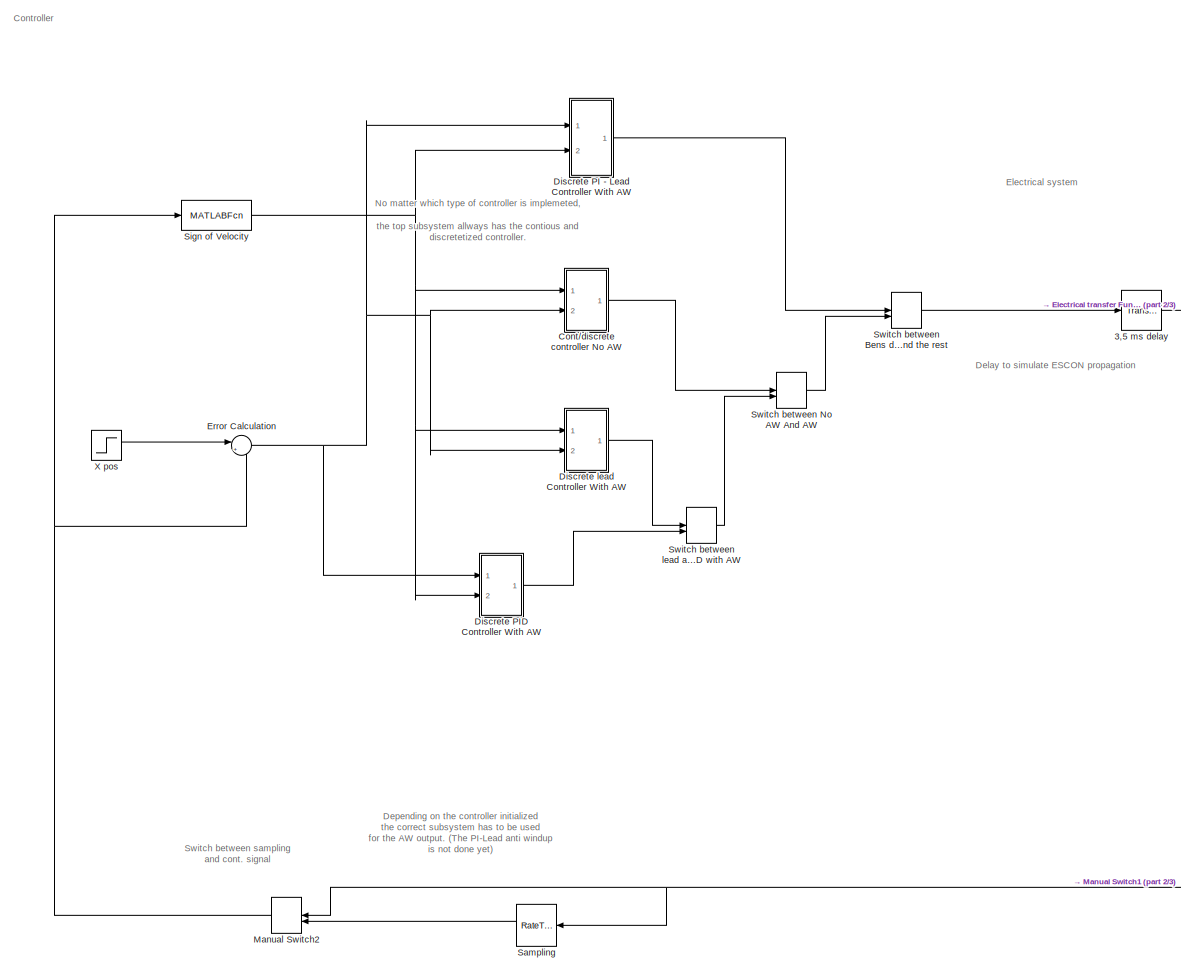
[diagram: root canvas - part 1/3, left side, full height]
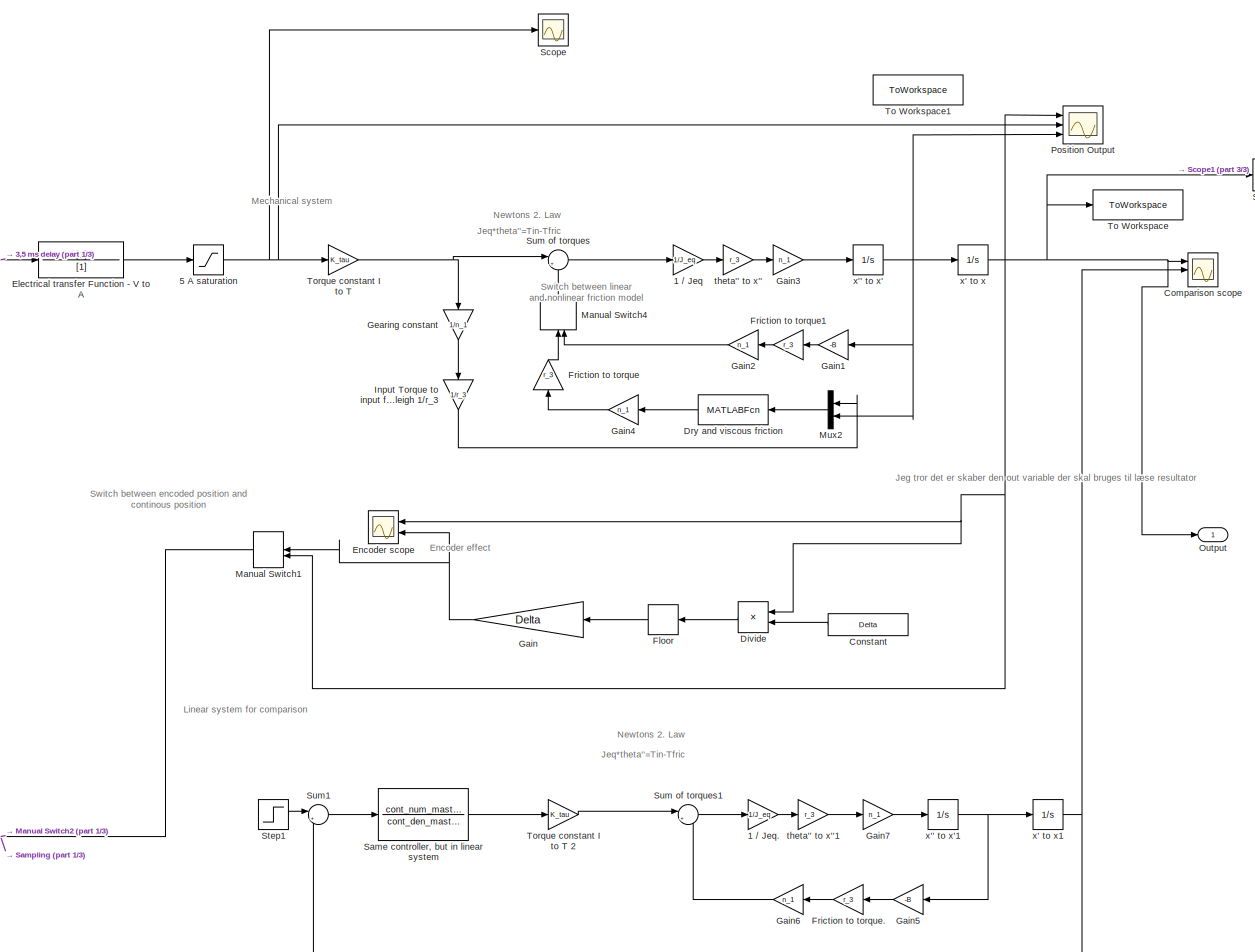
[diagram: root canvas - part 2/3, right side, full height]
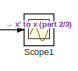
[diagram: root canvas - part 3/3, top right region]
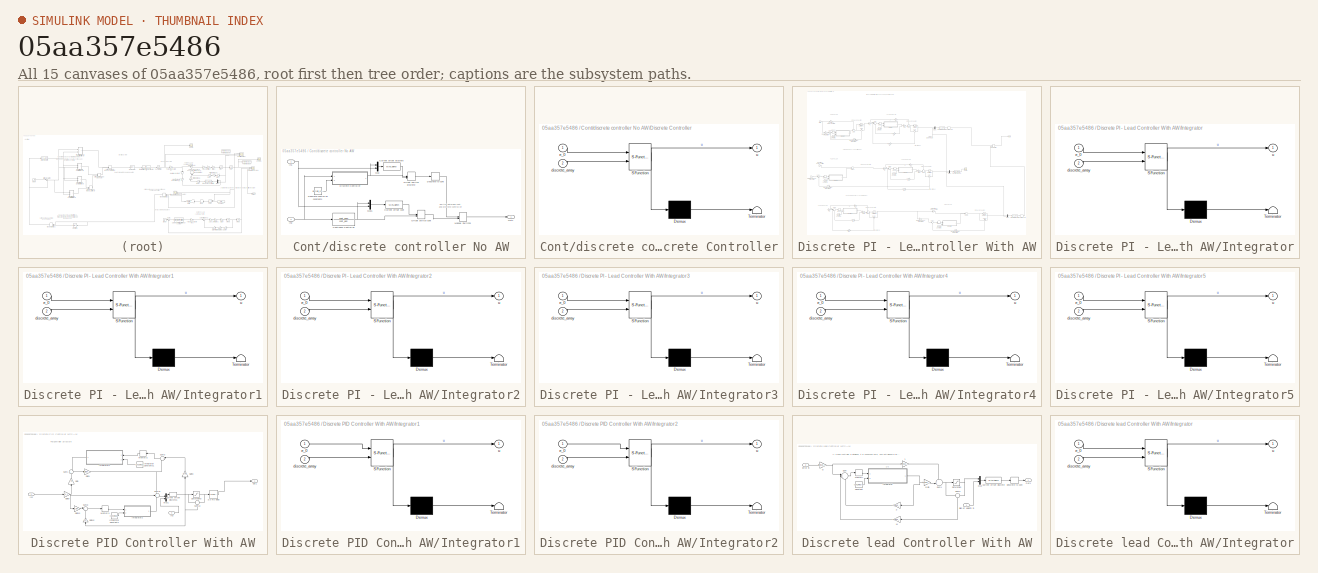
[diagram: thumbnail index - all 15 canvases of the model, root first then tree order]
MODEL slx_05aa357e5486
KIND model
CONFIG AbsTol = auto
CONFIG EnableMultiTasking = off
CONFIG FixedStep = 0.0001
CONFIG MaxStep = auto
CONFIG MinStep = auto
CONFIG RelTol = 1e-3
CONFIG SampleTimeConstraint = Unconstrained
CONFIG SolverName = FixedStepAuto
CONFIG StartTime = 0.0
CONFIG StopTime = 3
BLOCK [Gain] 1 // Jeq
  Gain = 1/J_eq
BLOCK [Gain] 1 // Jeq.
  Gain = 1/J_eq
BLOCK [TransportDelay] 3,5 ms delay
  DelayTime = 0.0035
  Ports = [1, 1]
BLOCK [Saturate] 5 A saturation
  LowerLimit = -5
  UpperLimit = 5
BLOCK [Scope] Comparison scope
  Commented = on
  Floating = off
  NumInputPorts = 3
  Ports = [3]
  ScopeSpecificationString = Simulink.scopes.TimeScopeBlockCfg('CurrentConfiguration', extmgr.ConfigurationSet(extmgr.Configuration('Core','General UI',true),extmgr.Configuration('Core','Source UI',true),extmgr.Configuration('Sources','WiredSimulink',true,'DataLoggingVariableName','ScopeData1'),extmgr.Configuration('Visuals','Time Domain',true,'SerializedDisplays',{struct('MinYLimReal','-0.12754','MaxYLimReal','1.14783','YLab...<+1511ch>
BLOCK [Constant] Constant
  NameLocation = top
  Value = Delta
BLOCK [SubSystem] Cont//discrete controller No AW
  Commented = on
  Ports = [2, 1]
  RequestExecContextInheritance = off
BLOCK [TransferFcn] Cont//discrete controller No AW/Continous Controller
  Denominator = cont_den
  Numerator = cont_num
BLOCK [MATLABFcn] Cont//discrete controller No AW/Current offset cont
  MATLABFcn = CurrentOffset(u)
  OutputDimensions = 1
  Ports = [1, 1]
BLOCK [MATLABFcn] Cont//discrete controller No AW/Current offset discrete
  MATLABFcn = CurrentOffset(u)
  NameLocation = top
  OutputDimensions = 1
  Ports = [1, 1]
BLOCK [Constant] Cont//discrete controller No AW/Descrete controller constants
  Value = discrete_controller_pid
BLOCK [ZeroOrderHold] Cont//discrete controller No AW/Descrete to cont
  SampleTime = T_sample
BLOCK [SubSystem] Cont//discrete controller No AW/Discrete Controller
  ErrorFcn = Stateflow.Translate.translate
  PermitHierarchicalResolution = ExplicitOnly
  Ports = [2, 1]
  RequestExecContextInheritance = off
  SFBlockType = MATLAB Function
  TreatAsAtomicUnit = on
BLOCK [Demux] Cont//discrete controller No AW/Discrete Controller/ Demux 
  Outputs = 1
  Ports = [1, 1]
BLOCK [S-Function] Cont//discrete controller No AW/Discrete Controller/ SFunction 
  EnableBusSupport = on
  FunctionName = sf_sfun
  PortCounts = [2 2]
  Ports = [2, 2]
  SFcnIsStateOwnerBlock = off
  SFunctionDeploymentMode = off
  Tag = Stateflow S-Function 1
BLOCK [Terminator] Cont//discrete controller No AW/Discrete Controller/ Terminator 
BLOCK [Inport] Cont//discrete controller No AW/Discrete Controller/discrete_array
  Port = 2
BLOCK [Inport] Cont//discrete controller No AW/Discrete Controller/e_0
BLOCK [Outport] Cont//discrete controller No AW/Discrete Controller/u
BLOCK [Inport] Cont//discrete controller No AW/In1
BLOCK [Inport] Cont//discrete controller No AW/In2
  Port = 2
BLOCK [ManualSwitch] Cont//discrete controller No AW/Manual Switch3
BLOCK [Mux] Cont//discrete controller No AW/Mux
  DisplayOption = bar
  Inputs = 2
  Ports = [2, 1]
BLOCK [Mux] Cont//discrete controller No AW/Mux1
  DisplayOption = bar
  Inputs = 2
  Ports = [2, 1]
BLOCK [ManualSwitch] Cont//discrete controller No AW/Offset switch cont
BLOCK [ManualSwitch] Cont//discrete controller No AW/Offset switch discrete
BLOCK [Outport] Cont//discrete controller No AW/Out1
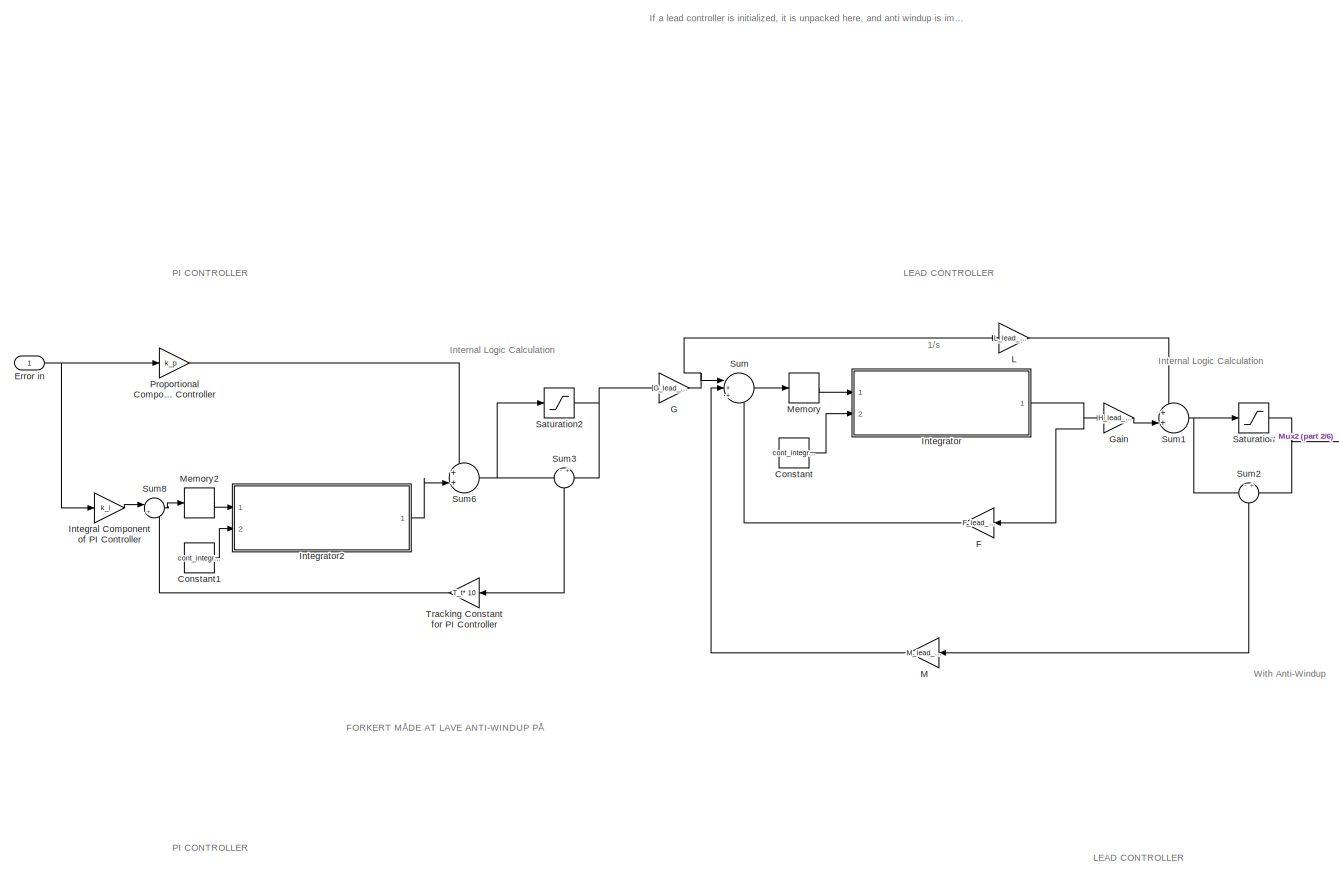
[diagram: Discrete PI - Lead Controller With AW - part 1/6, top left region]
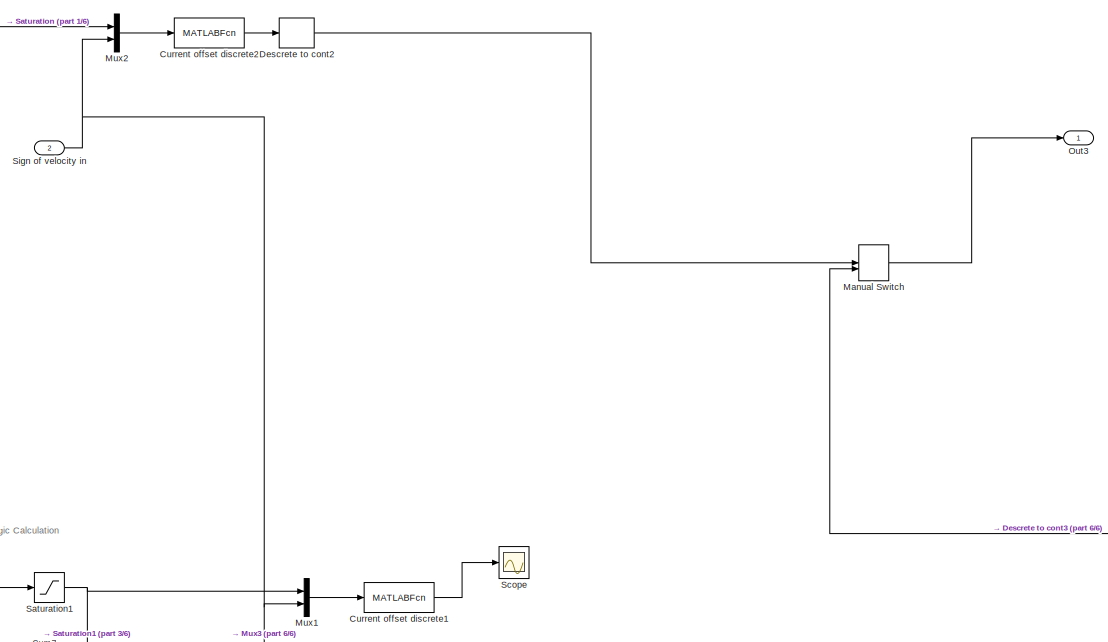
[diagram: Discrete PI - Lead Controller With AW - part 2/6, middle right region]
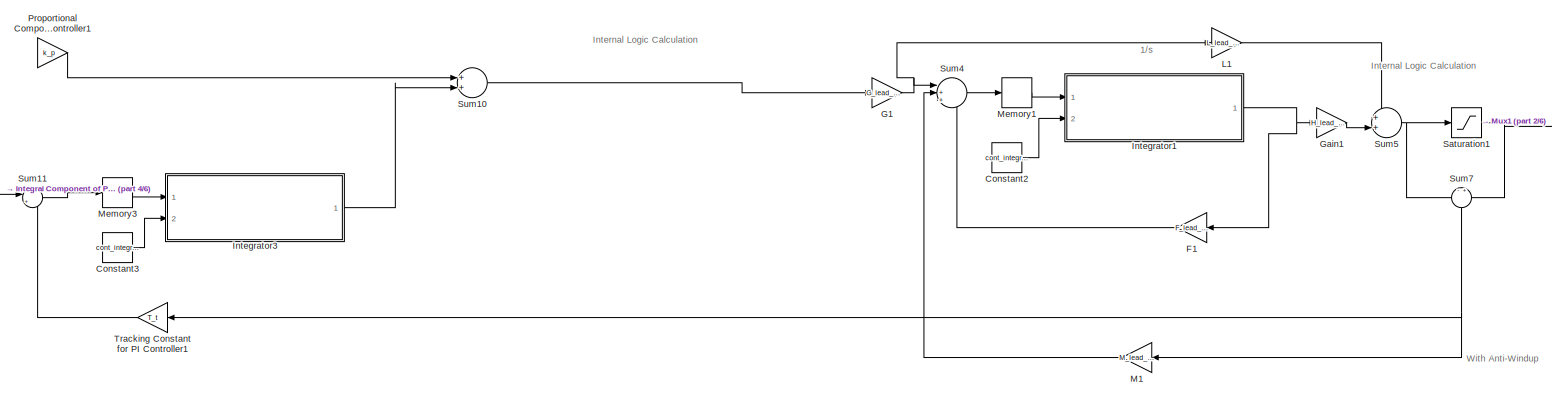
[diagram: Discrete PI - Lead Controller With AW - part 3/6, middle left region]
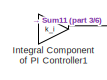
[diagram: Discrete PI - Lead Controller With AW - part 4/6, middle left region]
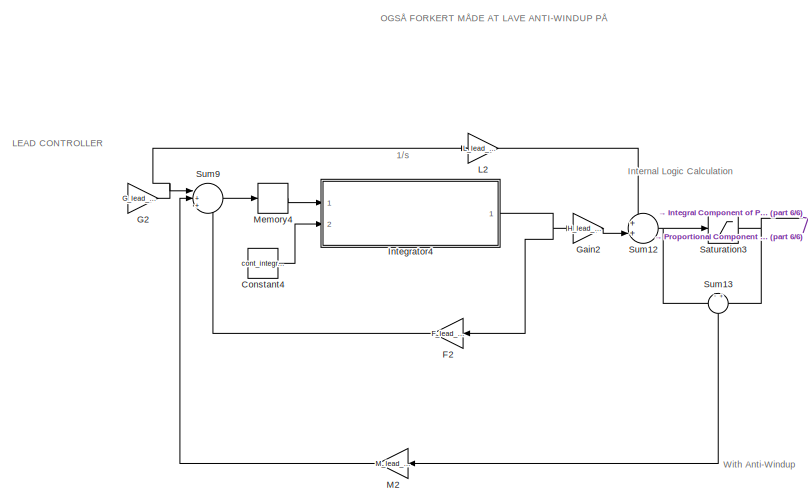
[diagram: Discrete PI - Lead Controller With AW - part 5/6, bottom left region]
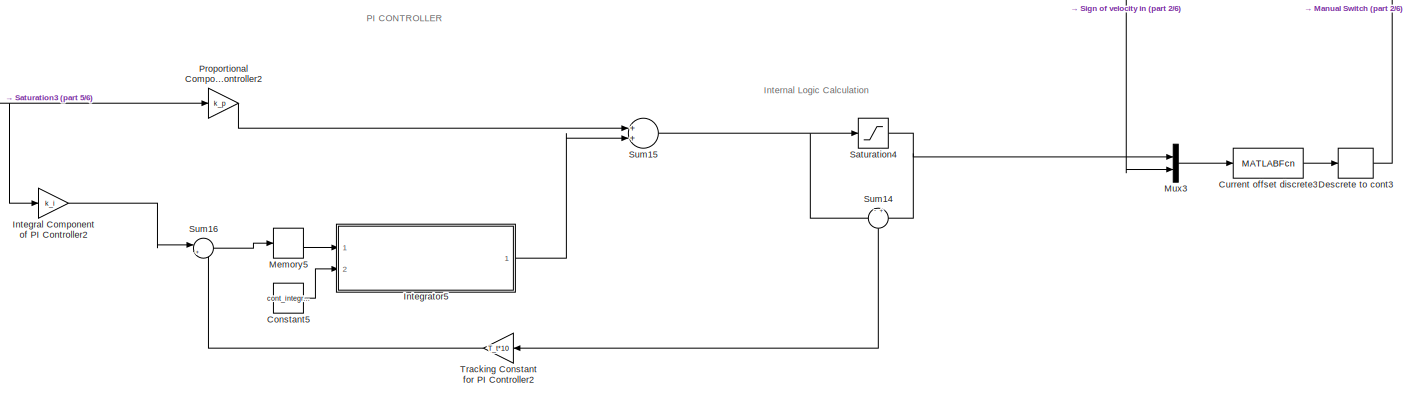
[diagram: Discrete PI - Lead Controller With AW - part 6/6, bottom right region]
BLOCK [SubSystem] Discrete PI - Lead Controller With AW
  Commented = on
  Ports = [2, 1]
  RequestExecContextInheritance = off
BLOCK [Constant] Discrete PI - Lead Controller With AW/Constant
  Value = cont_integrator_discrete
BLOCK [Constant] Discrete PI - Lead Controller With AW/Constant1
  Value = cont_integrator_discrete
BLOCK [Constant] Discrete PI - Lead Controller With AW/Constant2
  Commented = on
  Value = cont_integrator_discrete
BLOCK [Constant] Discrete PI - Lead Controller With AW/Constant3
  Commented = on
  Value = cont_integrator_discrete
BLOCK [Constant] Discrete PI - Lead Controller With AW/Constant4
  Commented = on
  Value = cont_integrator_discrete
BLOCK [Constant] Discrete PI - Lead Controller With AW/Constant5
  Commented = on
  Value = cont_integrator_discrete
BLOCK [MATLABFcn] Discrete PI - Lead Controller With AW/Current offset discrete1
  Commented = on
  MATLABFcn = CurrentOffset(u)
  NameLocation = top
  OutputDimensions = 1
  Ports = [1, 1]
BLOCK [MATLABFcn] Discrete PI - Lead Controller With AW/Current offset discrete2
  MATLABFcn = CurrentOffset(u)
  NameLocation = top
  OutputDimensions = 1
  Ports = [1, 1]
BLOCK [MATLABFcn] Discrete PI - Lead Controller With AW/Current offset discrete3
  Commented = on
  MATLABFcn = CurrentOffset(u)
  NameLocation = top
  OutputDimensions = 1
  Ports = [1, 1]
BLOCK [ZeroOrderHold] Discrete PI - Lead Controller With AW/Descrete to cont2
  SampleTime = T_sample
BLOCK [ZeroOrderHold] Discrete PI - Lead Controller With AW/Descrete to cont3
  Commented = on
  SampleTime = T_sample
BLOCK [Inport] Discrete PI - Lead Controller With AW/Error in
BLOCK [Gain] Discrete PI - Lead Controller With AW/F
  Gain = F_lead_param
  NameLocation = top
BLOCK [Gain] Discrete PI - Lead Controller With AW/F1
  Commented = on
  Gain = F_lead_param
  NameLocation = top
BLOCK [Gain] Discrete PI - Lead Controller With AW/F2
  Commented = on
  Gain = F_lead_param
  NameLocation = top
BLOCK [Gain] Discrete PI - Lead Controller With AW/G
  Gain = G_lead_param
BLOCK [Gain] Discrete PI - Lead Controller With AW/G1
  Commented = on
  Gain = G_lead_param
BLOCK [Gain] Discrete PI - Lead Controller With AW/G2
  Commented = on
  Gain = G_lead_param
BLOCK [Gain] Discrete PI - Lead Controller With AW/Gain
  Gain = H_lead_param
BLOCK [Gain] Discrete PI - Lead Controller With AW/Gain1
  Commented = on
  Gain = H_lead_param
BLOCK [Gain] Discrete PI - Lead Controller With AW/Gain2
  Commented = on
  Gain = H_lead_param
BLOCK [Gain] Discrete PI - Lead Controller With AW/Integral Component of PI Controller
  Gain = k_i
BLOCK [Gain] Discrete PI - Lead Controller With AW/Integral Component of PI Controller1
  Commented = on
  Gain = k_i
BLOCK [Gain] Discrete PI - Lead Controller With AW/Integral Component of PI Controller2
  Commented = on
  Gain = k_i
BLOCK [SubSystem] Discrete PI - Lead Controller With AW/Integrator
  ErrorFcn = Stateflow.Translate.translate
  PermitHierarchicalResolution = ExplicitOnly
  Ports = [2, 1]
  RequestExecContextInheritance = off
  SFBlockType = MATLAB Function
  TreatAsAtomicUnit = on
BLOCK [Demux] Discrete PI - Lead Controller With AW/Integrator/ Demux 
  Outputs = 1
  Ports = [1, 1]
BLOCK [S-Function] Discrete PI - Lead Controller With AW/Integrator/ SFunction 
  EnableBusSupport = on
  FunctionName = sf_sfun
  PortCounts = [2 2]
  Ports = [2, 2]
  SFcnIsStateOwnerBlock = off
  SFunctionDeploymentMode = off
  Tag = Stateflow S-Function 6
BLOCK [Terminator] Discrete PI - Lead Controller With AW/Integrator/ Terminator 
BLOCK [Inport] Discrete PI - Lead Controller With AW/Integrator/discrete_array
  Port = 2
BLOCK [Inport] Discrete PI - Lead Controller With AW/Integrator/e_0
BLOCK [Outport] Discrete PI - Lead Controller With AW/Integrator/u
BLOCK [SubSystem] Discrete PI - Lead Controller With AW/Integrator1
  Commented = on
  ErrorFcn = Stateflow.Translate.translate
  PermitHierarchicalResolution = ExplicitOnly
  Ports = [2, 1]
  RequestExecContextInheritance = off
  SFBlockType = MATLAB Function
  TreatAsAtomicUnit = on
BLOCK [Demux] Discrete PI - Lead Controller With AW/Integrator1/ Demux 
  Outputs = 1
  Ports = [1, 1]
BLOCK [S-Function] Discrete PI - Lead Controller With AW/Integrator1/ SFunction 
  EnableBusSupport = on
  FunctionName = sf_sfun
  PortCounts = [2 2]
  Ports = [2, 2]
  SFcnIsStateOwnerBlock = off
  SFunctionDeploymentMode = off
  Tag = Stateflow S-Function 4
BLOCK [Terminator] Discrete PI - Lead Controller With AW/Integrator1/ Terminator 
BLOCK [Inport] Discrete PI - Lead Controller With AW/Integrator1/discrete_array
  Port = 2
BLOCK [Inport] Discrete PI - Lead Controller With AW/Integrator1/e_0
BLOCK [Outport] Discrete PI - Lead Controller With AW/Integrator1/u
BLOCK [SubSystem] Discrete PI - Lead Controller With AW/Integrator2
  ErrorFcn = Stateflow.Translate.translate
  PermitHierarchicalResolution = ExplicitOnly
  Ports = [2, 1]
  RequestExecContextInheritance = off
  SFBlockType = MATLAB Function
  TreatAsAtomicUnit = on
BLOCK [Demux] Discrete PI - Lead Controller With AW/Integrator2/ Demux 
  Outputs = 1
  Ports = [1, 1]
BLOCK [S-Function] Discrete PI - Lead Controller With AW/Integrator2/ SFunction 
  EnableBusSupport = on
  FunctionName = sf_sfun
  PortCounts = [2 2]
  Ports = [2, 2]
  SFcnIsStateOwnerBlock = off
  SFunctionDeploymentMode = off
  Tag = Stateflow S-Function 10
BLOCK [Terminator] Discrete PI - Lead Controller With AW/Integrator2/ Terminator 
BLOCK [Inport] Discrete PI - Lead Controller With AW/Integrator2/discrete_array
  Port = 2
BLOCK [Inport] Discrete PI - Lead Controller With AW/Integrator2/e_0
BLOCK [Outport] Discrete PI - Lead Controller With AW/Integrator2/u
BLOCK [SubSystem] Discrete PI - Lead Controller With AW/Integrator3
  Commented = on
  ErrorFcn = Stateflow.Translate.translate
  PermitHierarchicalResolution = ExplicitOnly
  Ports = [2, 1]
  RequestExecContextInheritance = off
  SFBlockType = MATLAB Function
  TreatAsAtomicUnit = on
BLOCK [Demux] Discrete PI - Lead Controller With AW/Integrator3/ Demux 
  Outputs = 1
  Ports = [1, 1]
BLOCK [S-Function] Discrete PI - Lead Controller With AW/Integrator3/ SFunction 
  EnableBusSupport = on
  FunctionName = sf_sfun
  PortCounts = [2 2]
  Ports = [2, 2]
  SFcnIsStateOwnerBlock = off
  SFunctionDeploymentMode = off
  Tag = Stateflow S-Function 5
BLOCK [Terminator] Discrete PI - Lead Controller With AW/Integrator3/ Terminator 
BLOCK [Inport] Discrete PI - Lead Controller With AW/Integrator3/discrete_array
  Port = 2
BLOCK [Inport] Discrete PI - Lead Controller With AW/Integrator3/e_0
BLOCK [Outport] Discrete PI - Lead Controller With AW/Integrator3/u
BLOCK [SubSystem] Discrete PI - Lead Controller With AW/Integrator4
  Commented = on
  ErrorFcn = Stateflow.Translate.translate
  PermitHierarchicalResolution = ExplicitOnly
  Ports = [2, 1]
  RequestExecContextInheritance = off
  SFBlockType = MATLAB Function
  TreatAsAtomicUnit = on
BLOCK [Demux] Discrete PI - Lead Controller With AW/Integrator4/ Demux 
  Outputs = 1
  Ports = [1, 1]
BLOCK [S-Function] Discrete PI - Lead Controller With AW/Integrator4/ SFunction 
  EnableBusSupport = on
  FunctionName = sf_sfun
  PortCounts = [2 2]
  Ports = [2, 2]
  SFcnIsStateOwnerBlock = off
  SFunctionDeploymentMode = off
  Tag = Stateflow S-Function 7
BLOCK [Terminator] Discrete PI - Lead Controller With AW/Integrator4/ Terminator 
BLOCK [Inport] Discrete PI - Lead Controller With AW/Integrator4/discrete_array
  Port = 2
BLOCK [Inport] Discrete PI - Lead Controller With AW/Integrator4/e_0
BLOCK [Outport] Discrete PI - Lead Controller With AW/Integrator4/u
BLOCK [SubSystem] Discrete PI - Lead Controller With AW/Integrator5
  Commented = on
  ErrorFcn = Stateflow.Translate.translate
  PermitHierarchicalResolution = ExplicitOnly
  Ports = [2, 1]
  RequestExecContextInheritance = off
  SFBlockType = MATLAB Function
  TreatAsAtomicUnit = on
BLOCK [Demux] Discrete PI - Lead Controller With AW/Integrator5/ Demux 
  Outputs = 1
  Ports = [1, 1]
BLOCK [S-Function] Discrete PI - Lead Controller With AW/Integrator5/ SFunction 
  EnableBusSupport = on
  FunctionName = sf_sfun
  PortCounts = [2 2]
  Ports = [2, 2]
  SFcnIsStateOwnerBlock = off
  SFunctionDeploymentMode = off
  Tag = Stateflow S-Function 8
BLOCK [Terminator] Discrete PI - Lead Controller With AW/Integrator5/ Terminator 
BLOCK [Inport] Discrete PI - Lead Controller With AW/Integrator5/discrete_array
  Port = 2
BLOCK [Inport] Discrete PI - Lead Controller With AW/Integrator5/e_0
BLOCK [Outport] Discrete PI - Lead Controller With AW/Integrator5/u
BLOCK [Gain] Discrete PI - Lead Controller With AW/L
  Gain = L_lead_param
BLOCK [Gain] Discrete PI - Lead Controller With AW/L1
  Commented = on
  Gain = L_lead_param
BLOCK [Gain] Discrete PI - Lead Controller With AW/L2
  Commented = on
  Gain = L_lead_param
BLOCK [Gain] Discrete PI - Lead Controller With AW/M
  Gain = M_lead_param
  NameLocation = top
BLOCK [Gain] Discrete PI - Lead Controller With AW/M1
  Commented = on
  Gain = M_lead_param
  NameLocation = top
BLOCK [Gain] Discrete PI - Lead Controller With AW/M2
  Commented = on
  Gain = M_lead_param
  NameLocation = top
BLOCK [ManualSwitch] Discrete PI - Lead Controller With AW/Manual Switch
BLOCK [Memory] Discrete PI - Lead Controller With AW/Memory
BLOCK [Memory] Discrete PI - Lead Controller With AW/Memory1
  Commented = on
BLOCK [Memory] Discrete PI - Lead Controller With AW/Memory2
BLOCK [Memory] Discrete PI - Lead Controller With AW/Memory3
  Commented = on
BLOCK [Memory] Discrete PI - Lead Controller With AW/Memory4
  Commented = on
BLOCK [Memory] Discrete PI - Lead Controller With AW/Memory5
  Commented = on
BLOCK [Mux] Discrete PI - Lead Controller With AW/Mux1
  Commented = on
  DisplayOption = bar
  Inputs = 2
  Ports = [2, 1]
BLOCK [Mux] Discrete PI - Lead Controller With AW/Mux2
  DisplayOption = bar
  Inputs = 2
  Ports = [2, 1]
BLOCK [Mux] Discrete PI - Lead Controller With AW/Mux3
  Commented = on
  DisplayOption = bar
  Inputs = 2
  Ports = [2, 1]
BLOCK [Outport] Discrete PI - Lead Controller With AW/Out3
BLOCK [Gain] Discrete PI - Lead Controller With AW/Proportional Component of PI Controller
  Gain = k_p
BLOCK [Gain] Discrete PI - Lead Controller With AW/Proportional Component of PI Controller1
  Commented = on
  Gain = k_p
BLOCK [Gain] Discrete PI - Lead Controller With AW/Proportional Component of PI Controller2
  Commented = on
  Gain = k_p
BLOCK [Saturate] Discrete PI - Lead Controller With AW/Saturation
  LowerLimit = -5
  UpperLimit = 5
BLOCK [Saturate] Discrete PI - Lead Controller With AW/Saturation1
  Commented = on
  LowerLimit = -5
  UpperLimit = 5
BLOCK [Saturate] Discrete PI - Lead Controller With AW/Saturation2
  LowerLimit = -5
  UpperLimit = 5
BLOCK [Saturate] Discrete PI - Lead Controller With AW/Saturation3
  Commented = on
  LowerLimit = -5
  UpperLimit = 5
BLOCK [Saturate] Discrete PI - Lead Controller With AW/Saturation4
  Commented = on
  LowerLimit = -5
  UpperLimit = 5
BLOCK [Scope] Discrete PI - Lead Controller With AW/Scope
  Commented = on
  Floating = off
  NumInputPorts = 1
  Ports = [1]
  ScopeSpecificationString = Simulink.scopes.TimeScopeBlockCfg('CurrentConfiguration', extmgr.ConfigurationSet(extmgr.Configuration('Core','General UI',true),extmgr.Configuration('Core','Source UI',true),extmgr.Configuration('Sources','WiredSimulink',true,'DataLoggingVariableName','ScopeData2'),extmgr.Configuration('Visuals','Time Domain',true),extmgr.Configuration('Tools','Plot Navigation',true),extmgr.Configuration('Tools',...<+40ch>
BLOCK [Inport] Discrete PI - Lead Controller With AW/Sign of velocity in
  Port = 2
BLOCK [Sum] Discrete PI - Lead Controller With AW/Sum
  Inputs = |+++
  Ports = [3, 1]
BLOCK [Sum] Discrete PI - Lead Controller With AW/Sum1
  Inputs = ++|
  Ports = [2, 1]
BLOCK [Sum] Discrete PI - Lead Controller With AW/Sum10
  Commented = on
  Inputs = ++|
  Ports = [2, 1]
BLOCK [Sum] Discrete PI - Lead Controller With AW/Sum11
  Commented = on
  Inputs = |++
  Ports = [2, 1]
BLOCK [Sum] Discrete PI - Lead Controller With AW/Sum12
  Commented = on
  Inputs = ++|
  Ports = [2, 1]
BLOCK [Sum] Discrete PI - Lead Controller With AW/Sum13
  Commented = on
  Inputs = -+
  NameLocation = left
  Ports = [2, 1]
BLOCK [Sum] Discrete PI - Lead Controller With AW/Sum14
  Commented = on
  Inputs = -+
  NameLocation = left
  Ports = [2, 1]
BLOCK [Sum] Discrete PI - Lead Controller With AW/Sum15
  Commented = on
  Inputs = ++|
  Ports = [2, 1]
BLOCK [Sum] Discrete PI - Lead Controller With AW/Sum16
  Commented = on
  Inputs = |++
  Ports = [2, 1]
BLOCK [Sum] Discrete PI - Lead Controller With AW/Sum2
  Inputs = -+
  NameLocation = left
  Ports = [2, 1]
BLOCK [Sum] Discrete PI - Lead Controller With AW/Sum3
  Inputs = -+
  NameLocation = left
  Ports = [2, 1]
BLOCK [Sum] Discrete PI - Lead Controller With AW/Sum4
  Commented = on
  Inputs = |+++
  Ports = [3, 1]
BLOCK [Sum] Discrete PI - Lead Controller With AW/Sum5
  Commented = on
  Inputs = ++|
  Ports = [2, 1]
BLOCK [Sum] Discrete PI - Lead Controller With AW/Sum6
  Inputs = ++|
  Ports = [2, 1]
BLOCK [Sum] Discrete PI - Lead Controller With AW/Sum7
  Commented = on
  Inputs = -+
  NameLocation = left
  Ports = [2, 1]
BLOCK [Sum] Discrete PI - Lead Controller With AW/Sum8
  Inputs = |++
  Ports = [2, 1]
BLOCK [Sum] Discrete PI - Lead Controller With AW/Sum9
  Commented = on
  Inputs = |+++
  Ports = [3, 1]
BLOCK [Gain] Discrete PI - Lead Controller With AW/Tracking Constant for PI Controller
  Gain = T_t* 10
  NameLocation = top
BLOCK [Gain] Discrete PI - Lead Controller With AW/Tracking Constant for PI Controller1
  Commented = on
  Gain = T_t
  NameLocation = top
BLOCK [Gain] Discrete PI - Lead Controller With AW/Tracking Constant for PI Controller2
  Commented = on
  Gain = T_t*10
  NameLocation = top
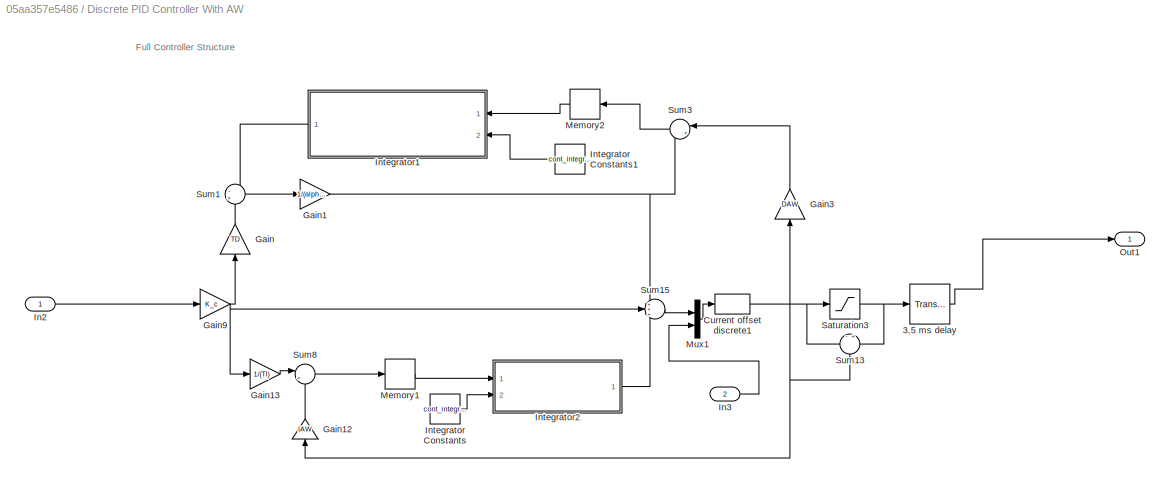
BLOCK [SubSystem] Discrete PID Controller With AW
  Commented = on
  Ports = [2, 1]
  RequestExecContextInheritance = off
BLOCK [TransportDelay] Discrete PID Controller With AW/3,5 ms delay
  DelayTime = 0.0035
  Ports = [1, 1]
BLOCK [MATLABFcn] Discrete PID Controller With AW/Current offset discrete1
  MATLABFcn = CurrentOffset(u)
  NameLocation = top
  OutputDimensions = 1
  Ports = [1, 1]
BLOCK [Gain] Discrete PID Controller With AW/Gain
  Gain = TD
  NameLocation = right
BLOCK [Gain] Discrete PID Controller With AW/Gain1
  Gain = 1/(alpha * TD)
BLOCK [Gain] Discrete PID Controller With AW/Gain12
  Gain = IAW
  NameLocation = right
BLOCK [Gain] Discrete PID Controller With AW/Gain13
  Gain = 1/(TI)
BLOCK [Gain] Discrete PID Controller With AW/Gain3
  Gain = DAW
  NameLocation = right
BLOCK [Gain] Discrete PID Controller With AW/Gain9
  Gain = K_c
BLOCK [Inport] Discrete PID Controller With AW/In2
BLOCK [Inport] Discrete PID Controller With AW/In3
  Port = 2
BLOCK [Constant] Discrete PID Controller With AW/Integrator Constants
  Value = cont_integrator_discrete
BLOCK [Constant] Discrete PID Controller With AW/Integrator Constants1
  NameLocation = top
  Value = cont_integrator_discrete
BLOCK [SubSystem] Discrete PID Controller With AW/Integrator1
  ErrorFcn = Stateflow.Translate.translate
  NameLocation = top
  PermitHierarchicalResolution = ExplicitOnly
  Ports = [2, 1]
  RequestExecContextInheritance = off
  SFBlockType = MATLAB Function
  TreatAsAtomicUnit = on
BLOCK [Demux] Discrete PID Controller With AW/Integrator1/ Demux 
  Outputs = 1
  Ports = [1, 1]
BLOCK [S-Function] Discrete PID Controller With AW/Integrator1/ SFunction 
  EnableBusSupport = on
  FunctionName = sf_sfun
  PortCounts = [2 2]
  Ports = [2, 2]
  SFcnIsStateOwnerBlock = off
  SFunctionDeploymentMode = off
  Tag = Stateflow S-Function 9
BLOCK [Terminator] Discrete PID Controller With AW/Integrator1/ Terminator 
BLOCK [Inport] Discrete PID Controller With AW/Integrator1/discrete_array
  Port = 2
BLOCK [Inport] Discrete PID Controller With AW/Integrator1/e_0
BLOCK [Outport] Discrete PID Controller With AW/Integrator1/u
BLOCK [SubSystem] Discrete PID Controller With AW/Integrator2
  ErrorFcn = Stateflow.Translate.translate
  PermitHierarchicalResolution = ExplicitOnly
  Ports = [2, 1]
  RequestExecContextInheritance = off
  SFBlockType = MATLAB Function
  TreatAsAtomicUnit = on
BLOCK [Demux] Discrete PID Controller With AW/Integrator2/ Demux 
  Outputs = 1
  Ports = [1, 1]
BLOCK [S-Function] Discrete PID Controller With AW/Integrator2/ SFunction 
  EnableBusSupport = on
  FunctionName = sf_sfun
  PortCounts = [2 2]
  Ports = [2, 2]
  SFcnIsStateOwnerBlock = off
  SFunctionDeploymentMode = off
  Tag = Stateflow S-Function 11
BLOCK [Terminator] Discrete PID Controller With AW/Integrator2/ Terminator 
BLOCK [Inport] Discrete PID Controller With AW/Integrator2/discrete_array
  Port = 2
BLOCK [Inport] Discrete PID Controller With AW/Integrator2/e_0
BLOCK [Outport] Discrete PID Controller With AW/Integrator2/u
BLOCK [Memory] Discrete PID Controller With AW/Memory1
BLOCK [Memory] Discrete PID Controller With AW/Memory2
  NameLocation = top
BLOCK [Mux] Discrete PID Controller With AW/Mux1
  DisplayOption = bar
  Inputs = 2
  Ports = [2, 1]
BLOCK [Outport] Discrete PID Controller With AW/Out1
BLOCK [Saturate] Discrete PID Controller With AW/Saturation3
  LowerLimit = -5
  UpperLimit = 5
BLOCK [Sum] Discrete PID Controller With AW/Sum1
  Inputs = -+
  Ports = [2, 1]
BLOCK [Sum] Discrete PID Controller With AW/Sum13
  Inputs = -+
  NameLocation = left
  Ports = [2, 1]
BLOCK [Sum] Discrete PID Controller With AW/Sum15
  Inputs = +++
  Ports = [3, 1]
BLOCK [Sum] Discrete PID Controller With AW/Sum3
  Inputs = |++
  NameLocation = top
  Ports = [2, 1]
BLOCK [Sum] Discrete PID Controller With AW/Sum8
  Inputs = |++
  Ports = [2, 1]
BLOCK [SubSystem] Discrete lead Controller With AW
  Ports = [2, 1]
  RequestExecContextInheritance = off
BLOCK [Constant] Discrete lead Controller With AW/Constant
  Value = cont_integrator_discrete
BLOCK [MATLABFcn] Discrete lead Controller With AW/Current offset discrete
  MATLABFcn = CurrentOffset(u)
  NameLocation = top
  OutputDimensions = 1
  Ports = [1, 1]
BLOCK [ZeroOrderHold] Discrete lead Controller With AW/Descrete to cont
  SampleTime = T_sample
BLOCK [Inport] Discrete lead Controller With AW/Error in
  Port = 2
BLOCK [Gain] Discrete lead Controller With AW/F
  Gain = F_lead_param
  NameLocation = top
BLOCK [Gain] Discrete lead Controller With AW/G
  Gain = G_lead_param
BLOCK [Gain] Discrete lead Controller With AW/Gain
  Gain = H_lead_param
BLOCK [SubSystem] Discrete lead Controller With AW/Integrator
  ErrorFcn = Stateflow.Translate.translate
  PermitHierarchicalResolution = ExplicitOnly
  Ports = [2, 1]
  RequestExecContextInheritance = off
  SFBlockType = MATLAB Function
  TreatAsAtomicUnit = on
BLOCK [Demux] Discrete lead Controller With AW/Integrator/ Demux 
  Outputs = 1
  Ports = [1, 1]
BLOCK [S-Function] Discrete lead Controller With AW/Integrator/ SFunction 
  EnableBusSupport = on
  FunctionName = sf_sfun
  PortCounts = [2 2]
  Ports = [2, 2]
  SFcnIsStateOwnerBlock = off
  SFunctionDeploymentMode = off
  Tag = Stateflow S-Function 2
BLOCK [Terminator] Discrete lead Controller With AW/Integrator/ Terminator 
BLOCK [Inport] Discrete lead Controller With AW/Integrator/discrete_array
  Port = 2
BLOCK [Inport] Discrete lead Controller With AW/Integrator/e_0
BLOCK [Outport] Discrete lead Controller With AW/Integrator/u
BLOCK [Gain] Discrete lead Controller With AW/L
  Gain = L_lead_param
BLOCK [Gain] Discrete lead Controller With AW/M
  Gain = M_lead_param
  NameLocation = top
BLOCK [Memory] Discrete lead Controller With AW/Memory
BLOCK [Mux] Discrete lead Controller With AW/Mux
  DisplayOption = bar
  Inputs = 2
  Ports = [2, 1]
BLOCK [Outport] Discrete lead Controller With AW/Out1
BLOCK [Saturate] Discrete lead Controller With AW/Saturation
  LowerLimit = -5
  UpperLimit = 5
BLOCK [Inport] Discrete lead Controller With AW/Sign of velocity in
BLOCK [Sum] Discrete lead Controller With AW/Sum
  Inputs = |+++
  Ports = [3, 1]
BLOCK [Sum] Discrete lead Controller With AW/Sum1
  Inputs = ++|
  Ports = [2, 1]
BLOCK [Sum] Discrete lead Controller With AW/Sum2
  Inputs = -+
  NameLocation = left
  Ports = [2, 1]
BLOCK [Product] Divide
  Inputs = */
  NameLocation = top
  Ports = [2, 1]
BLOCK [MATLABFcn] Dry and viscous friction
  MATLABFcn = CoulombAndViscousFriction(u)
  NameLocation = top
  OutputDimensions = 1
  Ports = [1, 1]
BLOCK [TransferFcn] Electrical transfer Function  - V to A
  Denominator = [1]
  NameLocation = top
BLOCK [Scope] Encoder scope
  Floating = off
  NameLocation = top
  NumInputPorts = 2
  Ports = [2]
  ScopeSpecificationString = Simulink.scopes.TimeScopeBlockCfg('CurrentConfiguration', extmgr.ConfigurationSet(extmgr.Configuration('Core','General UI',true),extmgr.Configuration('Core','Source UI',true),extmgr.Configuration('Sources','WiredSimulink',true,'DataLoggingVariableName','ScopeData1'),extmgr.Configuration('Visuals','Time Domain',true,'SerializedDisplays',{struct('MinYLimReal','-0.12295','MaxYLimReal','1.10652','YLab...<+1418ch>
BLOCK [Sum] Error Calculation
  Inputs = |+-
  NameLocation = top
  Ports = [2, 1]
BLOCK [Rounding] Floor
  NameLocation = top
BLOCK [Gain] Friction to torque
  Gain = r_3
  NameLocation = right
BLOCK [Gain] Friction to torque.
  Gain = r_3
  NameLocation = top
BLOCK [Gain] Friction to torque1
  Gain = r_3
  NameLocation = top
BLOCK [Gain] Gain
  Gain = Delta
  NameLocation = top
BLOCK [Gain] Gain1
  Gain = -B
  NameLocation = top
BLOCK [Gain] Gain2
  Gain = n_1
  NameLocation = top
BLOCK [Gain] Gain3
  Gain = n_1
BLOCK [Gain] Gain4
  Gain = n_1
  NameLocation = top
BLOCK [Gain] Gain5
  Gain = -B
  NameLocation = top
BLOCK [Gain] Gain6
  Gain = n_1
  NameLocation = top
BLOCK [Gain] Gain7
  Gain = n_1
BLOCK [Gain] Gearing constant
  Gain = 1/n_1
  NameLocation = left
BLOCK [Gain] Input Torque to input force on sleigh 1//r_3
  Gain = 1/r_3
  NameLocation = left
BLOCK [ManualSwitch] Manual Switch1
  NameLocation = top
BLOCK [ManualSwitch] Manual Switch2
  CurrentSetting = 0
  NameLocation = top
BLOCK [ManualSwitch] Manual Switch4
  NameLocation = right
BLOCK [Mux] Mux2
  DisplayOption = bar
  Inputs = 2
  NameLocation = top
  Ports = [2, 1]
BLOCK [Outport] Output
BLOCK [Scope] Position Output
  Commented = on
  Floating = off
  NumInputPorts = 3
  Ports = [3]
  ScopeSpecificationString = Simulink.scopes.TimeScopeBlockCfg('CurrentConfiguration', extmgr.ConfigurationSet(extmgr.Configuration('Core','General UI',true),extmgr.Configuration('Core','Source UI',true),extmgr.Configuration('Sources','WiredSimulink',true,'DataLoggingVariableName','ScopeData1'),extmgr.Configuration('Visuals','Time Domain',true,'SerializedDisplays',{struct('MinYLimReal','-0.13537','MaxYLimReal','1.21834','YLab...<+3114ch>
BLOCK [TransferFcn] Same controller, but in linear system
  Denominator = cont_den_master
  Numerator = cont_num_master
BLOCK [RateTransition] Sampling 
  OutPortSampleTime = T_sample
BLOCK [Scope] Scope
  Commented = on
  Floating = off
  NumInputPorts = 1
  Ports = [1]
  ScopeSpecificationString = Simulink.scopes.TimeScopeBlockCfg('CurrentConfiguration', extmgr.ConfigurationSet(extmgr.Configuration('Core','General UI',true),extmgr.Configuration('Core','Source UI',true),extmgr.Configuration('Sources','WiredSimulink',true,'DataLoggingVariableName','ScopeData1'),extmgr.Configuration('Visuals','Time Domain',true,'SerializedDisplays',{struct('MinYLimReal','-1.38652','MaxYLimReal','5.70961','YLab...<+1373ch>
BLOCK [Scope] Scope1
  Commented = on
  Floating = off
  NumInputPorts = 1
  Ports = [1]
  ScopeSpecificationString = Simulink.scopes.TimeScopeBlockCfg('CurrentConfiguration', extmgr.ConfigurationSet(extmgr.Configuration('Core','General UI',true),extmgr.Configuration('Core','Source UI',true),extmgr.Configuration('Sources','WiredSimulink',true,'DataLoggingVariableName','ScopeData2'),extmgr.Configuration('Visuals','Time Domain',true,'SerializedDisplays',{struct('MinYLimReal','-0.12685','MaxYLimReal','1.14167','YLab...<+1367ch>
BLOCK [MATLABFcn] Sign of Velocity
  MATLABFcn = SignOfVelocity(u)
  NameLocation = top
  OutputDimensions = 1
  Ports = [1, 1]
BLOCK [Step] Step1
  After = step_size(j)
  SampleTime = 0
  Time = 0
BLOCK [Sum] Sum of torques
  Inputs = |++
  Ports = [2, 1]
BLOCK [Sum] Sum of torques1
  Inputs = |++
  NameLocation = top
  Ports = [2, 1]
BLOCK [Sum] Sum1
  Inputs = |+-
  Ports = [2, 1]
BLOCK [ManualSwitch] Switch between Bens discrete PI-Lead AW and the rest
  CurrentSetting = 0
BLOCK [ManualSwitch] Switch between No AW And AW
  CurrentSetting = 0
BLOCK [ManualSwitch] Switch between lead and PID with AW
BLOCK [ToWorkspace] To Workspace
  FixptAsFi = on
  MaxDataPoints = inf
  Ports = [1]
  SampleTime = -1
  VariableName = last_test
BLOCK [ToWorkspace] To Workspace1
  FixptAsFi = on
  MaxDataPoints = inf
  Ports = [1]
  SampleTime = -1
  VariableName = last_test1
BLOCK [Gain] Torque constant I to T 
  Gain = K_tau
BLOCK [Gain] Torque constant I to T 2
  Gain = K_tau
BLOCK [Step] X pos
  After = step_size
  SampleTime = 0
  Time = 0
BLOCK [Gain] theta'' to x''
  Gain = r_3
BLOCK [Gain] theta'' to x''1
  Gain = r_3
  NameLocation = top
BLOCK [Integrator] x' to x
  Ports = [1, 1]
BLOCK [Integrator] x' to x1
  Ports = [1, 1]
BLOCK [Integrator] x'' to x'
  Ports = [1, 1]
BLOCK [Integrator] x'' to x'1
  Ports = [1, 1]
ANNOTATION (root): Controller
ANNOTATION (root): Delay to simulate ESCON propagation
ANNOTATION (root): Depending on the controller initialized the correct subsystem has to be used for the AW output. (The PI-Lead anti windup is not done yet)
ANNOTATION (root): Electrical system
ANNOTATION (root): Encoder effect
ANNOTATION (root): Jeg tror det er skaber den out variable der skal bruges til læse resultator
ANNOTATION (root): Jeq*theta''=Tin-Tfric
ANNOTATION (root): Linear system for comparison
ANNOTATION (root): Mechanical system
ANNOTATION (root): Newtons 2. Law
ANNOTATION (root): No matter which type of controller is implemeted, the top subsystem allways has the contious and discretetized controller.
ANNOTATION (root): Switch between encoded position and continous position
ANNOTATION (root): Switch between linear and nonlinear friction model
ANNOTATION (root): Switch between sampling and cont. signal
ANNOTATION Cont//discrete controller No AW: Switch between cont. and discrete controller
ANNOTATION Discrete PI - Lead Controller With AW: 1/s
ANNOTATION Discrete PI - Lead Controller With AW: FORKERT MÅDE AT LAVE ANTI-WINDUP PÅ
ANNOTATION Discrete PI - Lead Controller With AW: OGSÅ FORKERT MÅDE AT LAVE ANTI-WINDUP PÅ
ANNOTATION Discrete PI - Lead Controller With AW: If a lead controller is initialized, it is unpacked here, and anti windup is implemeted.
ANNOTATION Discrete PI - Lead Controller With AW: Internal Logic Calculation
ANNOTATION Discrete PI - Lead Controller With AW: LEAD CONTROLLER
ANNOTATION Discrete PI - Lead Controller With AW: PI CONTROLLER
ANNOTATION Discrete PI - Lead Controller With AW: With Anti-Windup
ANNOTATION Discrete PID Controller With AW: Full Controller Structure
ANNOTATION Discrete lead Controller With AW: 1/s
ANNOTATION Discrete lead Controller With AW: If a lead controller is initialized, it is unpacked here, and anti windup is implemeted.
LINE 1 // Jeq.:1 -> theta'' to x''1:1
LINE 1 // Jeq:1 -> theta'' to x'':1
LINE 3,5 ms delay:1 -> Electrical transfer Function  - V to A:1
NET 5 A saturation:1 -> Position Output:2, Scope:1, Torque constant I to T :1
LINE Constant:1 -> Divide:2
NET Cont//discrete controller No AW/Continous Controller:1 -> Cont//discrete controller No AW/Mux1:1, Cont//discrete controller No AW/Offset switch cont:2
LINE Cont//discrete controller No AW/Current offset cont:1 -> Cont//discrete controller No AW/Offset switch cont:1
LINE Cont//discrete controller No AW/Current offset discrete:1 -> Cont//discrete controller No AW/Offset switch discrete:1
LINE Cont//discrete controller No AW/Descrete controller constants:1 -> Cont//discrete controller No AW/Discrete Controller:2
LINE Cont//discrete controller No AW/Descrete to cont:1 -> Cont//discrete controller No AW/Manual Switch3:1
NET Cont//discrete controller No AW/Discrete Controller:1 -> Cont//discrete controller No AW/Mux:1, Cont//discrete controller No AW/Offset switch discrete:2
NET Cont//discrete controller No AW/In1:1 -> Cont//discrete controller No AW/Mux1:2, Cont//discrete controller No AW/Mux:2
NET Cont//discrete controller No AW/In2:1 -> Cont//discrete controller No AW/Continous Controller:1, Cont//discrete controller No AW/Discrete Controller:1
LINE Cont//discrete controller No AW/Manual Switch3:1 -> Cont//discrete controller No AW/Out1:1
LINE Cont//discrete controller No AW/Mux1:1 -> Cont//discrete controller No AW/Current offset cont:1
LINE Cont//discrete controller No AW/Mux:1 -> Cont//discrete controller No AW/Current offset discrete:1
LINE Cont//discrete controller No AW/Offset switch cont:1 -> Cont//discrete controller No AW/Manual Switch3:2
LINE Cont//discrete controller No AW/Offset switch discrete:1 -> Cont//discrete controller No AW/Descrete to cont:1
LINE Cont//discrete controller No AW:1 -> Switch between No AW And AW:1
LINE Discrete PI - Lead Controller With AW/Constant1:1 -> Discrete PI - Lead Controller With AW/Integrator2:2
LINE Discrete PI - Lead Controller With AW/Constant2:1 -> Discrete PI - Lead Controller With AW/Integrator1:2
LINE Discrete PI - Lead Controller With AW/Constant3:1 -> Discrete PI - Lead Controller With AW/Integrator3:2
LINE Discrete PI - Lead Controller With AW/Constant4:1 -> Discrete PI - Lead Controller With AW/Integrator4:2
LINE Discrete PI - Lead Controller With AW/Constant5:1 -> Discrete PI - Lead Controller With AW/Integrator5:2
LINE Discrete PI - Lead Controller With AW/Constant:1 -> Discrete PI - Lead Controller With AW/Integrator:2
LINE Discrete PI - Lead Controller With AW/Current offset discrete1:1 -> Discrete PI - Lead Controller With AW/Scope:1
LINE Discrete PI - Lead Controller With AW/Current offset discrete2:1 -> Discrete PI - Lead Controller With AW/Descrete to cont2:1
LINE Discrete PI - Lead Controller With AW/Current offset discrete3:1 -> Discrete PI - Lead Controller With AW/Descrete to cont3:1
LINE Discrete PI - Lead Controller With AW/Descrete to cont2:1 -> Discrete PI - Lead Controller With AW/Manual Switch:1
LINE Discrete PI - Lead Controller With AW/Descrete to cont3:1 -> Discrete PI - Lead Controller With AW/Manual Switch:2
NET Discrete PI - Lead Controller With AW/Error in:1 -> Discrete PI - Lead Controller With AW/Integral Component of PI Controller:1, Discrete PI - Lead Controller With AW/Proportional Component of PI Controller:1
LINE Discrete PI - Lead Controller With AW/F1:1 -> Discrete PI - Lead Controller With AW/Sum4:3
LINE Discrete PI - Lead Controller With AW/F2:1 -> Discrete PI - Lead Controller With AW/Sum9:3
LINE Discrete PI - Lead Controller With AW/F:1 -> Discrete PI - Lead Controller With AW/Sum:3
NET Discrete PI - Lead Controller With AW/G1:1 -> Discrete PI - Lead Controller With AW/L1:1, Discrete PI - Lead Controller With AW/Sum4:1
NET Discrete PI - Lead Controller With AW/G2:1 -> Discrete PI - Lead Controller With AW/L2:1, Discrete PI - Lead Controller With AW/Sum9:1
NET Discrete PI - Lead Controller With AW/G:1 -> Discrete PI - Lead Controller With AW/L:1, Discrete PI - Lead Controller With AW/Sum:1
LINE Discrete PI - Lead Controller With AW/Gain1:1 -> Discrete PI - Lead Controller With AW/Sum5:2
LINE Discrete PI - Lead Controller With AW/Gain2:1 -> Discrete PI - Lead Controller With AW/Sum12:2
LINE Discrete PI - Lead Controller With AW/Gain:1 -> Discrete PI - Lead Controller With AW/Sum1:2
LINE Discrete PI - Lead Controller With AW/Integral Component of PI Controller1:1 -> Discrete PI - Lead Controller With AW/Sum11:1
LINE Discrete PI - Lead Controller With AW/Integral Component of PI Controller2:1 -> Discrete PI - Lead Controller With AW/Sum16:1
LINE Discrete PI - Lead Controller With AW/Integral Component of PI Controller:1 -> Discrete PI - Lead Controller With AW/Sum8:1
NET Discrete PI - Lead Controller With AW/Integrator1:1 -> Discrete PI - Lead Controller With AW/F1:1, Discrete PI - Lead Controller With AW/Gain1:1
LINE Discrete PI - Lead Controller With AW/Integrator2:1 -> Discrete PI - Lead Controller With AW/Sum6:2
LINE Discrete PI - Lead Controller With AW/Integrator3:1 -> Discrete PI - Lead Controller With AW/Sum10:2
NET Discrete PI - Lead Controller With AW/Integrator4:1 -> Discrete PI - Lead Controller With AW/F2:1, Discrete PI - Lead Controller With AW/Gain2:1
LINE Discrete PI - Lead Controller With AW/Integrator5:1 -> Discrete PI - Lead Controller With AW/Sum15:2
NET Discrete PI - Lead Controller With AW/Integrator:1 -> Discrete PI - Lead Controller With AW/F:1, Discrete PI - Lead Controller With AW/Gain:1
LINE Discrete PI - Lead Controller With AW/L1:1 -> Discrete PI - Lead Controller With AW/Sum5:1
LINE Discrete PI - Lead Controller With AW/L2:1 -> Discrete PI - Lead Controller With AW/Sum12:1
LINE Discrete PI - Lead Controller With AW/L:1 -> Discrete PI - Lead Controller With AW/Sum1:1
LINE Discrete PI - Lead Controller With AW/M1:1 -> Discrete PI - Lead Controller With AW/Sum4:2
LINE Discrete PI - Lead Controller With AW/M2:1 -> Discrete PI - Lead Controller With AW/Sum9:2
LINE Discrete PI - Lead Controller With AW/M:1 -> Discrete PI - Lead Controller With AW/Sum:2
LINE Discrete PI - Lead Controller With AW/Manual Switch:1 -> Discrete PI - Lead Controller With AW/Out3:1
LINE Discrete PI - Lead Controller With AW/Memory1:1 -> Discrete PI - Lead Controller With AW/Integrator1:1
LINE Discrete PI - Lead Controller With AW/Memory2:1 -> Discrete PI - Lead Controller With AW/Integrator2:1
LINE Discrete PI - Lead Controller With AW/Memory3:1 -> Discrete PI - Lead Controller With AW/Integrator3:1
LINE Discrete PI - Lead Controller With AW/Memory4:1 -> Discrete PI - Lead Controller With AW/Integrator4:1
LINE Discrete PI - Lead Controller With AW/Memory5:1 -> Discrete PI - Lead Controller With AW/Integrator5:1
LINE Discrete PI - Lead Controller With AW/Memory:1 -> Discrete PI - Lead Controller With AW/Integrator:1
LINE Discrete PI - Lead Controller With AW/Mux1:1 -> Discrete PI - Lead Controller With AW/Current offset discrete1:1
LINE Discrete PI - Lead Controller With AW/Mux2:1 -> Discrete PI - Lead Controller With AW/Current offset discrete2:1
LINE Discrete PI - Lead Controller With AW/Mux3:1 -> Discrete PI - Lead Controller With AW/Current offset discrete3:1
LINE Discrete PI - Lead Controller With AW/Proportional Component of PI Controller1:1 -> Discrete PI - Lead Controller With AW/Sum10:1
LINE Discrete PI - Lead Controller With AW/Proportional Component of PI Controller2:1 -> Discrete PI - Lead Controller With AW/Sum15:1
LINE Discrete PI - Lead Controller With AW/Proportional Component of PI Controller:1 -> Discrete PI - Lead Controller With AW/Sum6:1
NET Discrete PI - Lead Controller With AW/Saturation1:1 -> Discrete PI - Lead Controller With AW/Mux1:1, Discrete PI - Lead Controller With AW/Sum7:2
NET Discrete PI - Lead Controller With AW/Saturation2:1 -> Discrete PI - Lead Controller With AW/G:1, Discrete PI - Lead Controller With AW/Sum3:2
NET Discrete PI - Lead Controller With AW/Saturation3:1 -> Discrete PI - Lead Controller With AW/Integral Component of PI Controller2:1, Discrete PI - Lead Controller With AW/Proportional Component of PI Controller2:1, Discrete PI - Lead Controller With AW/Sum13:2
NET Discrete PI - Lead Controller With AW/Saturation4:1 -> Discrete PI - Lead Controller With AW/Mux3:1, Discrete PI - Lead Controller With AW/Sum14:2
NET Discrete PI - Lead Controller With AW/Saturation:1 -> Discrete PI - Lead Controller With AW/Mux2:1, Discrete PI - Lead Controller With AW/Sum2:2
NET Discrete PI - Lead Controller With AW/Sign of velocity in:1 -> Discrete PI - Lead Controller With AW/Mux1:2, Discrete PI - Lead Controller With AW/Mux2:2, Discrete PI - Lead Controller With AW/Mux3:2
LINE Discrete PI - Lead Controller With AW/Sum10:1 -> Discrete PI - Lead Controller With AW/G1:1
LINE Discrete PI - Lead Controller With AW/Sum11:1 -> Discrete PI - Lead Controller With AW/Memory3:1
NET Discrete PI - Lead Controller With AW/Sum12:1 -> Discrete PI - Lead Controller With AW/Saturation3:1, Discrete PI - Lead Controller With AW/Sum13:1
LINE Discrete PI - Lead Controller With AW/Sum13:1 -> Discrete PI - Lead Controller With AW/M2:1
LINE Discrete PI - Lead Controller With AW/Sum14:1 -> Discrete PI - Lead Controller With AW/Tracking Constant for PI Controller2:1
NET Discrete PI - Lead Controller With AW/Sum15:1 -> Discrete PI - Lead Controller With AW/Saturation4:1, Discrete PI - Lead Controller With AW/Sum14:1
LINE Discrete PI - Lead Controller With AW/Sum16:1 -> Discrete PI - Lead Controller With AW/Memory5:1
NET Discrete PI - Lead Controller With AW/Sum1:1 -> Discrete PI - Lead Controller With AW/Saturation:1, Discrete PI - Lead Controller With AW/Sum2:1
LINE Discrete PI - Lead Controller With AW/Sum2:1 -> Discrete PI - Lead Controller With AW/M:1
LINE Discrete PI - Lead Controller With AW/Sum3:1 -> Discrete PI - Lead Controller With AW/Tracking Constant for PI Controller:1
LINE Discrete PI - Lead Controller With AW/Sum4:1 -> Discrete PI - Lead Controller With AW/Memory1:1
NET Discrete PI - Lead Controller With AW/Sum5:1 -> Discrete PI - Lead Controller With AW/Saturation1:1, Discrete PI - Lead Controller With AW/Sum7:1
NET Discrete PI - Lead Controller With AW/Sum6:1 -> Discrete PI - Lead Controller With AW/Saturation2:1, Discrete PI - Lead Controller With AW/Sum3:1
NET Discrete PI - Lead Controller With AW/Sum7:1 -> Discrete PI - Lead Controller With AW/M1:1, Discrete PI - Lead Controller With AW/Tracking Constant for PI Controller1:1
LINE Discrete PI - Lead Controller With AW/Sum8:1 -> Discrete PI - Lead Controller With AW/Memory2:1
LINE Discrete PI - Lead Controller With AW/Sum9:1 -> Discrete PI - Lead Controller With AW/Memory4:1
LINE Discrete PI - Lead Controller With AW/Sum:1 -> Discrete PI - Lead Controller With AW/Memory:1
LINE Discrete PI - Lead Controller With AW/Tracking Constant for PI Controller1:1 -> Discrete PI - Lead Controller With AW/Sum11:2
LINE Discrete PI - Lead Controller With AW/Tracking Constant for PI Controller2:1 -> Discrete PI - Lead Controller With AW/Sum16:2
LINE Discrete PI - Lead Controller With AW/Tracking Constant for PI Controller:1 -> Discrete PI - Lead Controller With AW/Sum8:2
LINE Discrete PI - Lead Controller With AW:1 -> Switch between Bens discrete PI-Lead AW and the rest:1
LINE Discrete PID Controller With AW/3,5 ms delay:1 -> Discrete PID Controller With AW/Out1:1
NET Discrete PID Controller With AW/Current offset discrete1:1 -> Discrete PID Controller With AW/Saturation3:1, Discrete PID Controller With AW/Sum13:1
LINE Discrete PID Controller With AW/Gain12:1 -> Discrete PID Controller With AW/Sum8:2
LINE Discrete PID Controller With AW/Gain13:1 -> Discrete PID Controller With AW/Sum8:1
NET Discrete PID Controller With AW/Gain1:1 -> Discrete PID Controller With AW/Sum15:1, Discrete PID Controller With AW/Sum3:2
LINE Discrete PID Controller With AW/Gain3:1 -> Discrete PID Controller With AW/Sum3:1
NET Discrete PID Controller With AW/Gain9:1 -> Discrete PID Controller With AW/Gain13:1, Discrete PID Controller With AW/Gain:1, Discrete PID Controller With AW/Sum15:2
LINE Discrete PID Controller With AW/Gain:1 -> Discrete PID Controller With AW/Sum1:2
LINE Discrete PID Controller With AW/In2:1 -> Discrete PID Controller With AW/Gain9:1
LINE Discrete PID Controller With AW/In3:1 -> Discrete PID Controller With AW/Mux1:2
LINE Discrete PID Controller With AW/Integrator Constants1:1 -> Discrete PID Controller With AW/Integrator1:2
LINE Discrete PID Controller With AW/Integrator Constants:1 -> Discrete PID Controller With AW/Integrator2:2
LINE Discrete PID Controller With AW/Integrator1:1 -> Discrete PID Controller With AW/Sum1:1
LINE Discrete PID Controller With AW/Integrator2:1 -> Discrete PID Controller With AW/Sum15:3
LINE Discrete PID Controller With AW/Memory1:1 -> Discrete PID Controller With AW/Integrator2:1
LINE Discrete PID Controller With AW/Memory2:1 -> Discrete PID Controller With AW/Integrator1:1
LINE Discrete PID Controller With AW/Mux1:1 -> Discrete PID Controller With AW/Current offset discrete1:1
NET Discrete PID Controller With AW/Saturation3:1 -> Discrete PID Controller With AW/3,5 ms delay:1, Discrete PID Controller With AW/Sum13:2
NET Discrete PID Controller With AW/Sum13:1 -> Discrete PID Controller With AW/Gain12:1, Discrete PID Controller With AW/Gain3:1
LINE Discrete PID Controller With AW/Sum15:1 -> Discrete PID Controller With AW/Mux1:1
LINE Discrete PID Controller With AW/Sum1:1 -> Discrete PID Controller With AW/Gain1:1
LINE Discrete PID Controller With AW/Sum3:1 -> Discrete PID Controller With AW/Memory2:1
LINE Discrete PID Controller With AW/Sum8:1 -> Discrete PID Controller With AW/Memory1:1
LINE Discrete PID Controller With AW:1 -> Switch between lead and PID with AW:2
LINE Discrete lead Controller With AW/Constant:1 -> Discrete lead Controller With AW/Integrator:2
LINE Discrete lead Controller With AW/Current offset discrete:1 -> Discrete lead Controller With AW/Descrete to cont:1
LINE Discrete lead Controller With AW/Descrete to cont:1 -> Discrete lead Controller With AW/Out1:1
LINE Discrete lead Controller With AW/Error in:1 -> Discrete lead Controller With AW/G:1
LINE Discrete lead Controller With AW/F:1 -> Discrete lead Controller With AW/Sum:3
NET Discrete lead Controller With AW/G:1 -> Discrete lead Controller With AW/L:1, Discrete lead Controller With AW/Sum:1
LINE Discrete lead Controller With AW/Gain:1 -> Discrete lead Controller With AW/Sum1:2
NET Discrete lead Controller With AW/Integrator:1 -> Discrete lead Controller With AW/F:1, Discrete lead Controller With AW/Gain:1
LINE Discrete lead Controller With AW/L:1 -> Discrete lead Controller With AW/Sum1:1
LINE Discrete lead Controller With AW/M:1 -> Discrete lead Controller With AW/Sum:2
LINE Discrete lead Controller With AW/Memory:1 -> Discrete lead Controller With AW/Integrator:1
LINE Discrete lead Controller With AW/Mux:1 -> Discrete lead Controller With AW/Current offset discrete:1
NET Discrete lead Controller With AW/Saturation:1 -> Discrete lead Controller With AW/Mux:1, Discrete lead Controller With AW/Sum2:2
LINE Discrete lead Controller With AW/Sign of velocity in:1 -> Discrete lead Controller With AW/Mux:2
NET Discrete lead Controller With AW/Sum1:1 -> Discrete lead Controller With AW/Saturation:1, Discrete lead Controller With AW/Sum2:1
LINE Discrete lead Controller With AW/Sum2:1 -> Discrete lead Controller With AW/M:1
LINE Discrete lead Controller With AW/Sum:1 -> Discrete lead Controller With AW/Memory:1
LINE Discrete lead Controller With AW:1 -> Switch between lead and PID with AW:1
LINE Divide:1 -> Floor:1
LINE Dry and viscous friction:1 -> Gain4:1
LINE Electrical transfer Function  - V to A:1 -> 5 A saturation:1
NET Error Calculation:1 -> Cont//discrete controller No AW:2, Discrete PI - Lead Controller With AW:1, Discrete PID Controller With AW:1, Discrete lead Controller With AW:2
LINE Floor:1 -> Gain:1
LINE Friction to torque.:1 -> Gain6:1
LINE Friction to torque1:1 -> Gain2:1
LINE Friction to torque:1 -> Manual Switch4:1
LINE Gain1:1 -> Friction to torque1:1
LINE Gain2:1 -> Manual Switch4:2
LINE Gain3:1 -> x'' to x':1
LINE Gain4:1 -> Friction to torque:1
LINE Gain5:1 -> Friction to torque.:1
LINE Gain6:1 -> Sum of torques1:2
LINE Gain7:1 -> x'' to x'1:1
NET Gain:1 -> Encoder scope:2, Manual Switch1:1
LINE Gearing constant:1 -> Input Torque to input force on sleigh 1//r_3:1
LINE Input Torque to input force on sleigh 1//r_3:1 -> Mux2:1
NET Manual Switch1:1 -> Manual Switch2:1, Sampling :1
NET Manual Switch2:1 -> Error Calculation:2, Sign of Velocity:1
LINE Manual Switch4:1 -> Sum of torques:2
LINE Mux2:1 -> Dry and viscous friction:1
LINE Same controller, but in linear system:1 -> Torque constant I to T 2:1
LINE Sampling :1 -> Manual Switch2:2
NET Sign of Velocity:1 -> Cont//discrete controller No AW:1, Discrete PI - Lead Controller With AW:2, Discrete PID Controller With AW:2, Discrete lead Controller With AW:1
LINE Step1:1 -> Sum1:1
LINE Sum of torques1:1 -> 1 // Jeq.:1
LINE Sum of torques:1 -> 1 // Jeq:1
LINE Sum1:1 -> Same controller, but in linear system:1
LINE Switch between Bens discrete PI-Lead AW and the rest:1 -> 3,5 ms delay:1
LINE Switch between No AW And AW:1 -> Switch between Bens discrete PI-Lead AW and the rest:2
LINE Switch between lead and PID with AW:1 -> Switch between No AW And AW:2
LINE Torque constant I to T 2:1 -> Sum of torques1:1
NET Torque constant I to T :1 -> Gearing constant:1, Sum of torques:1
LINE X pos:1 -> Error Calculation:1
LINE theta'' to x''1:1 -> Gain7:1
LINE theta'' to x'':1 -> Gain3:1
NET x' to x1:1 -> Comparison scope:2, Sum1:2
NET x' to x:1 -> Comparison scope:1, Divide:1, Encoder scope:1, Manual Switch1:2, Output:1, Position Output:1, Scope1:1, To Workspace:1
NET x'' to x'1:1 -> Gain5:1, x' to x1:1
NET x'' to x':1 -> Gain1:1, Mux2:2, Position Output:3, x' to x:1
note: NET lines group one-source signal fan-out (src -> all destinations, sorted); 1:1 wires keep LINE
CHART Discrete lead Controller
With AW/Integrator states=1 transitions=1
  STATE_LABEL 'eML_blk_kernel()'
  STATE_LABEL "SCRIPT:\nfunction u = Controller(e_0, discrete_array)\npersistent u_1 e_1 e_2 e_3 e_4 u_2 u_3 u_4 ;\n\ncoder.extrinsic('evalin', 'assignin') %% this allows access to T_sample\nT = 0;\nT = evalin('base','T_sample'); % Read value from workspace\n\n\n\n%% discrete array input has the following format\n%discrete_array(1) =  u_n FD array \n%discrete_array(2) =  e_n FD array \n%discrete_array(3) =  u_n BD array \n%di...<+1558ch>"  <repeated x9 — deduplicated; at blocks: Discrete lead Controller, Discrete PI - Lead Controller, Discrete PID Controller>
CHART Discrete PI - Lead Controller
With AW/Integrator1 states=1 transitions=1
  STATE_LABEL 'eML_blk_kernel()'
CHART Discrete PI - Lead Controller
With AW/Integrator3 states=1 transitions=1
  STATE_LABEL 'eML_blk_kernel()'
CHART Discrete PI - Lead Controller
With AW/Integrator states=1 transitions=1
  STATE_LABEL 'eML_blk_kernel()'
CHART Discrete PI - Lead Controller
With AW/Integrator4 states=1 transitions=1
  STATE_LABEL 'eML_blk_kernel()'
CHART Discrete PI - Lead Controller
With AW/Integrator5 states=1 transitions=1
  STATE_LABEL 'eML_blk_kernel()'
CHART Discrete PID Controller
With AW/Integrator1 states=1 transitions=1
  STATE_LABEL 'eML_blk_kernel()'
CHART Discrete PI - Lead Controller
With AW/Integrator2 states=1 transitions=1
  STATE_LABEL 'eML_blk_kernel()'
CHART Cont//discrete controller
No AW/Discrete Controller states=1 transitions=1
  STATE_LABEL 'eML_blk_kernel()'
  STATE_LABEL "SCRIPT:\nfunction u = Controller(e_0, discrete_array)\npersistent u_1 e_1 e_2 e_3 e_4 u_2 u_3 u_4 ;\n\ncoder.extrinsic('evalin', 'assignin') %% this allows access to T_sample\nT = 0;\nT = evalin('base','T_sample'); % Read value from workspace\n\n\n\n%% discrete array input has the following format\n%discrete_array(1) =  u_n FD array \n%discrete_array(2) =  e_n FD array \n%discrete_array(3) =  u_n BD array \n%di...<+1693ch>"
CHART Discrete PID Controller
With AW/Integrator2 states=1 transitions=1
  STATE_LABEL 'eML_blk_kernel()'
CHART  states=0 transitions=0
CHART  states=0 transitions=0
CHART  states=0 transitions=0
CHART  states=0 transitions=0
CHART  states=0 transitions=0
CHART  states=0 transitions=0
CHART  states=0 transitions=0
CHART  states=0 transitions=0
CHART  states=0 transitions=0
CHART  states=0 transitions=0
